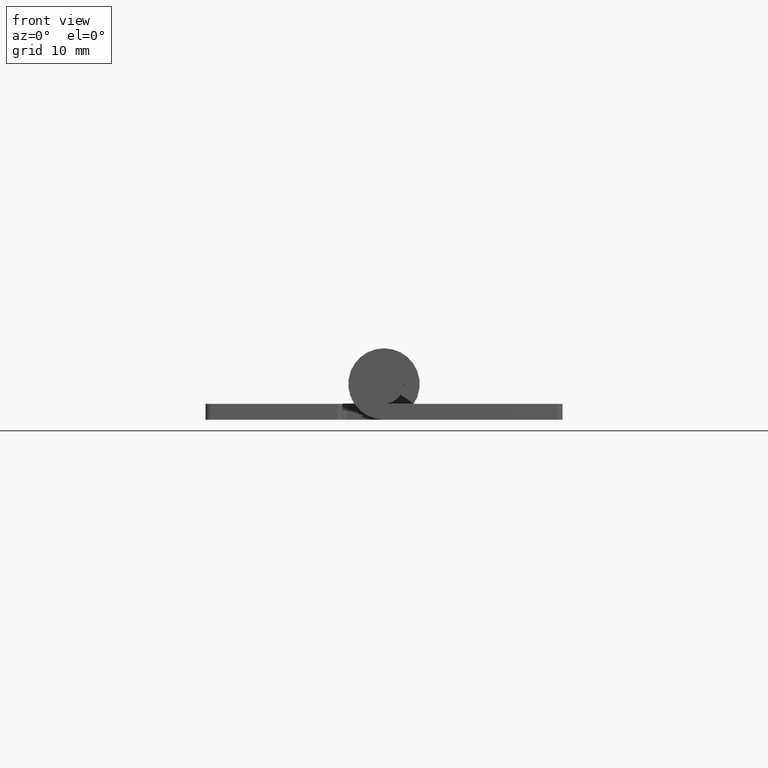
[diagram: clean part render]
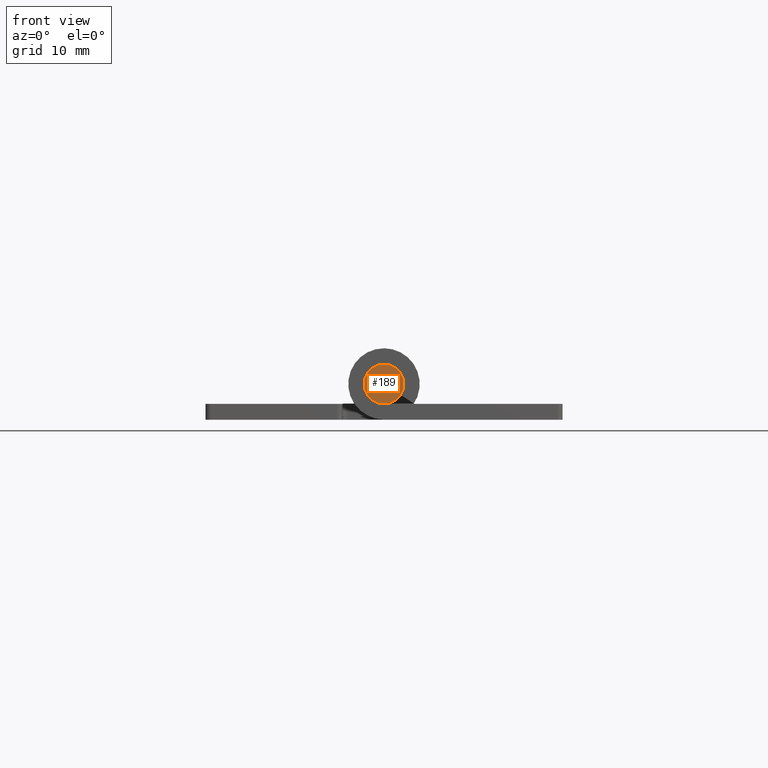
[diagram: same view with one face highlighted and labeled with its STEP entity id]
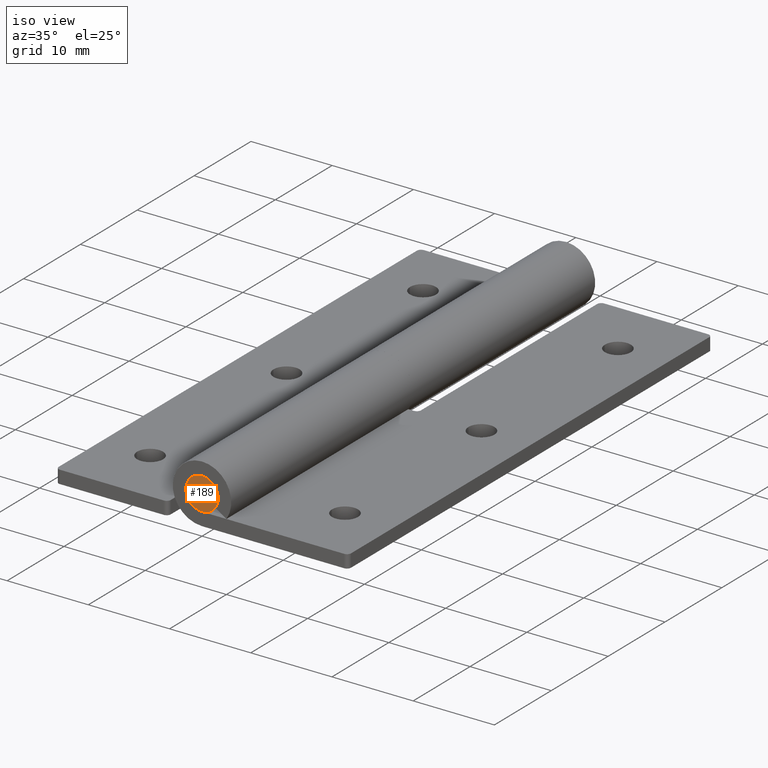
[diagram: same view with one face highlighted and labeled with its STEP entity id]
A machine part, front view. The second image highlights one B-rep face of the part: STEP entity #189.
A second angle (iso view) of the same face is appended — the face is thin or edge-on in the first view.
In plain terms, the highlighted planar face has unit normal (0, 1, 0).
Its self-contained STEP definition (entity closure, byte-faithful):
#189=ADVANCED_FACE('',(#608),#607,.F.);
#607=PLANE('',#882);
#608=FACE_OUTER_BOUND('',#883,.T.);
#879=CARTESIAN_POINT('',(-4.15692193817E+00,0.00000000000E+00,-2.60000000000E+00));
#880=DIRECTION('',(0.00000000000E+00,1.00000000000E+00,0.00000000000E+00));
#881=DIRECTION('',(0.00000000000E+00,-0.00000000000E+00,1.00000000000E+00));
#882=AXIS2_PLACEMENT_3D('',#879,#880,#881);
#883=EDGE_LOOP('',(#1137,#1138));
#1137=ORIENTED_EDGE('',*,*,#1265,.T.);
#1138=ORIENTED_EDGE('',*,*,#1266,.T.);
#1265=EDGE_CURVE('',#1995,#1996,#1997,.T.);
#1266=EDGE_CURVE('',#1996,#1995,#2003,.T.);
#1995=VERTEX_POINT('',#2493);
#1996=VERTEX_POINT('',#2494);
#1997=CIRCLE('',#2498,2.00000000000E+00);
#2003=CIRCLE('',#2502,2.00000000000E+00);
#2493=CARTESIAN_POINT('',(0.00000000000E+00,0.00000000000E+00,-2.00000000000E+00));
#2494=CARTESIAN_POINT('',(2.22044604925E-16,0.00000000000E+00,2.00000000000E+00));
#2495=CARTESIAN_POINT('',(0.00000000000E+00,0.00000000000E+00,0.00000000000E+00));
#2496=DIRECTION('',(0.00000000000E+00,-1.00000000000E+00,-0.00000000000E+00));
#2497=DIRECTION('',(-1.22460635382E-16,0.00000000000E+00,-1.00000000000E+00));
#2498=AXIS2_PLACEMENT_3D('',#2495,#2496,#2497);
#2499=CARTESIAN_POINT('',(0.00000000000E+00,0.00000000000E+00,0.00000000000E+00));
#2500=DIRECTION('',(0.00000000000E+00,-1.00000000000E+00,-0.00000000000E+00));
#2501=DIRECTION('',(-1.22460635382E-16,0.00000000000E+00,-1.00000000000E+00));
#2502=AXIS2_PLACEMENT_3D('',#2499,#2500,#2501);